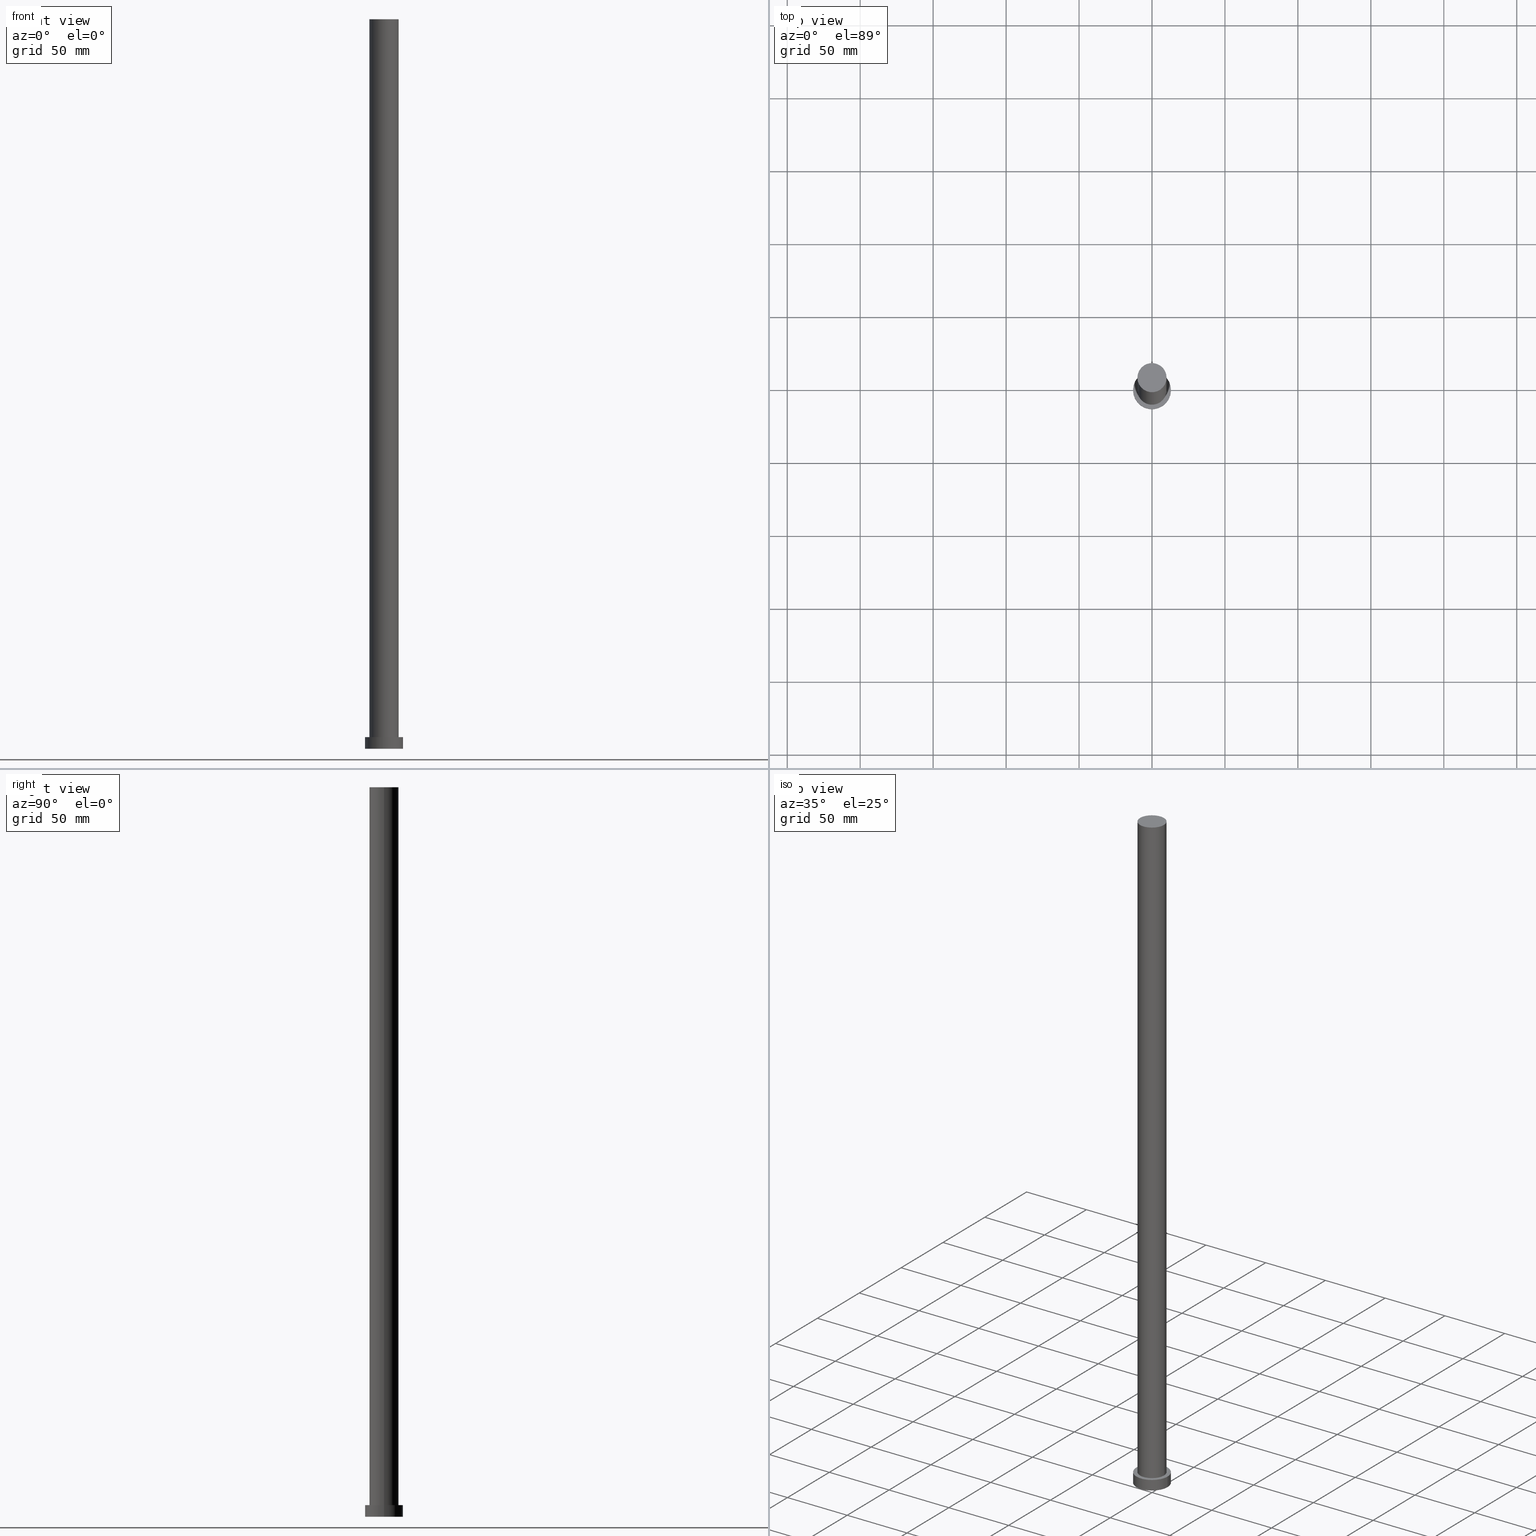
[diagram: canonical four-view strip — front | top / right | iso, engineering-drawing reading convention]
A machine part, canonical four-view strip (front | top / right | iso — engineering-drawing reading convention). The complete STEP part file that produces these views, byte-faithful:
ISO-10303-21;
HEADER;
FILE_DESCRIPTION (( 'STEP AP203' ),
    '1' );
FILE_NAME ('1e9e.STEP',
    '2023-02-12T10:32:07',
    ( '' ),
    ( '' ),
    'SwSTEP 2.0',
    'SolidWorks 2019',
    '' );
FILE_SCHEMA (( 'CONFIG_CONTROL_DESIGN' ));
ENDSEC;

DATA;
#1 = CIRCLE ( 'NONE', #34, 10.00000000000000000 ) ;
#2 = EDGE_CURVE ( 'NONE', #58, #77, #112, .T. ) ;
#3 = CARTESIAN_POINT ( 'NONE',  ( 10.00000000000000000, 1.224646799147353256E-15, 8.000000000000000000 ) ) ;
#4 = DIRECTION ( 'NONE',  ( 0.000000000000000000, 0.000000000000000000, 1.000000000000000000 ) ) ;
#5 = EDGE_LOOP ( 'NONE', ( #28, #63, #41, #222 ) ) ;
#6 = LINE ( 'NONE', #182, #124 ) ;
#7 = CIRCLE ( 'NONE', #155, 13.00000000000000178 ) ;
#8 = DIRECTION ( 'NONE',  ( 1.000000000000000000, 0.000000000000000000, -0.000000000000000000 ) ) ;
#9 = CARTESIAN_POINT ( 'NONE',  ( 0.000000000000000000, 0.000000000000000000, 500.0000000000000000 ) ) ;
#10 = EDGE_LOOP ( 'NONE', ( #36, #195, #115, #188 ) ) ;
#11 = LINE ( 'NONE', #88, #147 ) ;
#12 = APPLICATION_CONTEXT ( 'configuration controlled 3d designs of mechanical parts and assemblies' ) ;
#13 = CARTESIAN_POINT ( 'NONE',  ( -13.00000000000000178, 0.000000000000000000, 0.000000000000000000 ) ) ;
#14 = DIRECTION ( 'NONE',  ( 0.000000000000000000, 0.000000000000000000, 1.000000000000000000 ) ) ;
#15 = PERSON ( 'NEUR�EN�', 'NEUR�EN�', 'NEUR�EN�', ('NEUR�EN�'), ('NEUR�EN�'), ('NEUR�EN�') ) ;
#16 = AXIS2_PLACEMENT_3D ( 'NONE', #76, #235, #51 ) ;
#17 =( LENGTH_UNIT ( ) NAMED_UNIT ( * ) SI_UNIT ( .MILLI., .METRE. ) );
#18 = CARTESIAN_POINT ( 'NONE',  ( 0.000000000000000000, 0.000000000000000000, 0.000000000000000000 ) ) ;
#19 = DIRECTION ( 'NONE',  ( 1.000000000000000000, 0.000000000000000000, -0.000000000000000000 ) ) ;
#20 = APPROVAL_STATUS ( 'not_yet_approved' ) ;
#21 = APPROVAL ( #184, 'NEUR�EN�' ) ;
#22 = CALENDAR_DATE ( 2023, 12, 2 ) ;
#23 = AXIS2_PLACEMENT_3D ( 'NONE', #55, #61, #143 ) ;
#24 = VERTEX_POINT ( 'NONE', #48 ) ;
#25 = DATE_AND_TIME ( #65, #197 ) ;
#26 = ADVANCED_FACE ( 'NONE', ( #250 ), #27, .T. ) ;
#27 = CYLINDRICAL_SURFACE ( 'NONE', #162, 13.00000000000000178 ) ;
#28 = ORIENTED_EDGE ( 'NONE', *, *, #247, .F. ) ;
#29 = VECTOR ( 'NONE', #135, 1000.000000000000000 ) ;
#30 = CYLINDRICAL_SURFACE ( 'NONE', #16, 13.00000000000000178 ) ;
#31 = CYLINDRICAL_SURFACE ( 'NONE', #167, 10.00000000000000000 ) ;
#32 = CARTESIAN_POINT ( 'NONE',  ( -13.00000000000000178, 0.000000000000000000, 8.000000000000000000 ) ) ;
#33 = LINE ( 'NONE', #32, #102 ) ;
#34 = AXIS2_PLACEMENT_3D ( 'NONE', #225, #44, #238 ) ;
#35 = CC_DESIGN_PERSON_AND_ORGANIZATION_ASSIGNMENT ( #70, #245, ( #239 ) ) ;
#36 = ORIENTED_EDGE ( 'NONE', *, *, #186, .F. ) ;
#37 = FACE_BOUND ( 'NONE', #169, .T. ) ;
#38 = ORIENTED_EDGE ( 'NONE', *, *, #181, .T. ) ;
#39 = DESIGN_CONTEXT ( 'detailed design', #137, 'design' ) ;
#40 = CC_DESIGN_APPROVAL ( #120, ( #157 ) ) ;
#41 = ORIENTED_EDGE ( 'NONE', *, *, #114, .T. ) ;
#42 = PERSON_AND_ORGANIZATION ( #15, #74 ) ;
#43 = LOCAL_TIME ( 11, 32, 7.000000000000000000, #109 ) ;
#44 = DIRECTION ( 'NONE',  ( 0.000000000000000000, 0.000000000000000000, 1.000000000000000000 ) ) ;
#45 = PRODUCT_DEFINITION ( 'NEZN�M�', '', #239, #39 ) ;
#46 = APPROVAL_PERSON_ORGANIZATION ( #126, #163, #228 ) ;
#47 = APPROVAL_DATE_TIME ( #86, #163 ) ;
#48 = CARTESIAN_POINT ( 'NONE',  ( 13.00000000000000178, 1.592040838891559293E-15, 8.000000000000000000 ) ) ;
#49 = CARTESIAN_POINT ( 'NONE',  ( 0.000000000000000000, 0.000000000000000000, 8.000000000000000000 ) ) ;
#50 = CIRCLE ( 'NONE', #57, 10.00000000000000000 ) ;
#51 = DIRECTION ( 'NONE',  ( -1.000000000000000000, 0.000000000000000000, 0.000000000000000000 ) ) ;
#52 = EDGE_CURVE ( 'NONE', #24, #205, #11, .T. ) ;
#53 = EDGE_LOOP ( 'NONE', ( #38, #218 ) ) ;
#54 = DIRECTION ( 'NONE',  ( 0.000000000000000000, 0.000000000000000000, 1.000000000000000000 ) ) ;
#55 = CARTESIAN_POINT ( 'NONE',  ( 0.000000000000000000, 0.000000000000000000, 8.000000000000000000 ) ) ;
#56 = DIRECTION ( 'NONE',  ( 0.000000000000000000, 0.000000000000000000, 1.000000000000000000 ) ) ;
#57 = AXIS2_PLACEMENT_3D ( 'NONE', #49, #254, #116 ) ;
#58 = VERTEX_POINT ( 'NONE', #73 ) ;
#59 = MECHANICAL_CONTEXT ( 'NONE', #12, 'mechanical' ) ;
#60 = AXIS2_PLACEMENT_3D ( 'NONE', #198, #56, #223 ) ;
#61 = DIRECTION ( 'NONE',  ( 0.000000000000000000, 0.000000000000000000, 1.000000000000000000 ) ) ;
#62 = CALENDAR_DATE ( 2023, 12, 2 ) ;
#63 = ORIENTED_EDGE ( 'NONE', *, *, #186, .T. ) ;
#64 = PRODUCT_RELATED_PRODUCT_CATEGORY ( 'detail', '', ( #129 ) ) ;
#65 = CALENDAR_DATE ( 2023, 12, 2 ) ;
#66 = CLOSED_SHELL ( 'NONE', ( #172, #26, #166, #204, #215, #82, #179 ) ) ;
#67 = APPROVAL_DATE_TIME ( #232, #120 ) ;
#68 = DIRECTION ( 'NONE',  ( 0.000000000000000000, 0.000000000000000000, 1.000000000000000000 ) ) ;
#69 = DATE_TIME_ROLE ( 'creation_date' ) ;
#70 = PERSON_AND_ORGANIZATION ( #15, #74 ) ;
#71 = DIRECTION ( 'NONE',  ( -1.000000000000000000, 0.000000000000000000, 0.000000000000000000 ) ) ;
#72 = EDGE_CURVE ( 'NONE', #24, #242, #203, .T. ) ;
#73 = CARTESIAN_POINT ( 'NONE',  ( -10.00000000000000000, 0.000000000000000000, 8.000000000000000000 ) ) ;
#74 = ORGANIZATION ( 'NEUR�EN�', 'NEUR�EN�', '' ) ;
#75 = DIRECTION ( 'NONE',  ( 0.000000000000000000, 0.000000000000000000, 1.000000000000000000 ) ) ;
#76 = CARTESIAN_POINT ( 'NONE',  ( 0.000000000000000000, 0.000000000000000000, 8.000000000000000000 ) ) ;
#77 = VERTEX_POINT ( 'NONE', #3 ) ;
#78 = CARTESIAN_POINT ( 'NONE',  ( 0.000000000000000000, 0.000000000000000000, 500.0000000000000000 ) ) ;
#79 =( NAMED_UNIT ( * ) PLANE_ANGLE_UNIT ( ) SI_UNIT ( $, .RADIAN. ) );
#80 = FACE_OUTER_BOUND ( 'NONE', #141, .T. ) ;
#81 = ORIENTED_EDGE ( 'NONE', *, *, #2, .F. ) ;
#82 = ADVANCED_FACE ( 'NONE', ( #113 ), #156, .T. ) ;
#83 = CARTESIAN_POINT ( 'NONE',  ( -10.00000000000000000, 0.000000000000000000, 500.0000000000000000 ) ) ;
#84 = LOCAL_TIME ( 11, 32, 7.000000000000000000, #105 ) ;
#85 = DATE_AND_TIME ( #62, #43 ) ;
#86 = DATE_AND_TIME ( #22, #178 ) ;
#87 = AXIS2_PLACEMENT_3D ( 'NONE', #237, #98, #164 ) ;
#88 = CARTESIAN_POINT ( 'NONE',  ( 13.00000000000000178, 1.592040838891559293E-15, 8.000000000000000000 ) ) ;
#89 = ORIENTED_EDGE ( 'NONE', *, *, #148, .T. ) ;
#90 = CARTESIAN_POINT ( 'NONE',  ( 0.000000000000000000, 0.000000000000000000, 0.000000000000000000 ) ) ;
#91 = AXIS2_PLACEMENT_3D ( 'NONE', #144, #54, #8 ) ;
#92 = EDGE_CURVE ( 'NONE', #242, #128, #33, .T. ) ;
#93 = DIRECTION ( 'NONE',  ( -0.000000000000000000, -0.000000000000000000, -1.000000000000000000 ) ) ;
#94 = MANIFOLD_SOLID_BREP ( 'P�idat vysunut�m3', #66 ) ;
#95 = CARTESIAN_POINT ( 'NONE',  ( 0.000000000000000000, 0.000000000000000000, 8.000000000000000000 ) ) ;
#96 = LOCAL_TIME ( 11, 32, 7.000000000000000000, #173 ) ;
#97 = ORIENTED_EDGE ( 'NONE', *, *, #72, .F. ) ;
#98 = DIRECTION ( 'NONE',  ( 0.000000000000000000, 0.000000000000000000, 1.000000000000000000 ) ) ;
#99 = DIRECTION ( 'NONE',  ( -0.000000000000000000, -0.000000000000000000, -1.000000000000000000 ) ) ;
#100 =( NAMED_UNIT ( * ) SI_UNIT ( $, .STERADIAN. ) SOLID_ANGLE_UNIT ( ) );
#101 = PLANE ( 'NONE',  #244 ) ;
#102 = VECTOR ( 'NONE', #159, 1000.000000000000000 ) ;
#103 = EDGE_CURVE ( 'NONE', #191, #58, #217, .T. ) ;
#104 = CC_DESIGN_APPROVAL ( #21, ( #239 ) ) ;
#105 = COORDINATED_UNIVERSAL_TIME_OFFSET ( 1, 0, .AHEAD. ) ;
#106 = APPROVAL_DATE_TIME ( #85, #21 ) ;
#107 = APPROVAL_ROLE ( '' ) ;
#108 = DIRECTION ( 'NONE',  ( -0.000000000000000000, -0.000000000000000000, -1.000000000000000000 ) ) ;
#109 = COORDINATED_UNIVERSAL_TIME_OFFSET ( 1, 0, .AHEAD. ) ;
#110 = CIRCLE ( 'NONE', #60, 10.00000000000000000 ) ;
#111 = CC_DESIGN_DATE_AND_TIME_ASSIGNMENT ( #248, #69, ( #45 ) ) ;
#112 = CIRCLE ( 'NONE', #251, 10.00000000000000000 ) ;
#113 = FACE_OUTER_BOUND ( 'NONE', #10, .T. ) ;
#114 = EDGE_CURVE ( 'NONE', #77, #58, #50, .T. ) ;
#115 = ORIENTED_EDGE ( 'NONE', *, *, #103, .T. ) ;
#116 = DIRECTION ( 'NONE',  ( 1.000000000000000000, 0.000000000000000000, 0.000000000000000000 ) ) ;
#117 = ORIENTED_EDGE ( 'NONE', *, *, #72, .T. ) ;
#118 = CARTESIAN_POINT ( 'NONE',  ( 0.000000000000000000, 0.000000000000000000, 0.000000000000000000 ) ) ;
#119 = DIRECTION ( 'NONE',  ( -1.000000000000000000, 0.000000000000000000, 0.000000000000000000 ) ) ;
#120 = APPROVAL ( #152, 'NEUR�EN�' ) ;
#121 = AXIS2_PLACEMENT_3D ( 'NONE', #78, #93, #255 ) ;
#122 = DIRECTION ( 'NONE',  ( -0.000000000000000000, -0.000000000000000000, -1.000000000000000000 ) ) ;
#123 = PRODUCT_DEFINITION_SHAPE ( 'NONE', 'NONE',  #45 ) ;
#124 = VECTOR ( 'NONE', #99, 1000.000000000000000 ) ;
#125 = ORIENTED_EDGE ( 'NONE', *, *, #148, .F. ) ;
#126 = PERSON_AND_ORGANIZATION ( #15, #74 ) ;
#127 = PERSON_AND_ORGANIZATION_ROLE ( 'creator' ) ;
#128 = VERTEX_POINT ( 'NONE', #13 ) ;
#129 = PRODUCT ( '1e9e', '1e9e', '', ( #59 ) ) ;
#130 = PERSON_AND_ORGANIZATION ( #15, #74 ) ;
#131 = ORIENTED_EDGE ( 'NONE', *, *, #140, .T. ) ;
#132 = PERSON_AND_ORGANIZATION ( #15, #74 ) ;
#133 = ORIENTED_EDGE ( 'NONE', *, *, #92, .T. ) ;
#134 = CC_DESIGN_PERSON_AND_ORGANIZATION_ASSIGNMENT ( #130, #151, ( #239 ) ) ;
#135 = DIRECTION ( 'NONE',  ( -0.000000000000000000, -0.000000000000000000, -1.000000000000000000 ) ) ;
#136 = FACE_OUTER_BOUND ( 'NONE', #5, .T. ) ;
#137 = APPLICATION_CONTEXT ( 'configuration controlled 3d designs of mechanical parts and assemblies' ) ;
#138 = EDGE_LOOP ( 'NONE', ( #97, #171, #131, #160 ) ) ;
#139 = DIRECTION ( 'NONE',  ( 0.000000000000000000, 0.000000000000000000, 1.000000000000000000 ) ) ;
#140 = EDGE_CURVE ( 'NONE', #205, #128, #234, .T. ) ;
#141 = EDGE_LOOP ( 'NONE', ( #220, #213 ) ) ;
#142 = DIRECTION ( 'NONE',  ( 1.000000000000000000, 0.000000000000000000, 0.000000000000000000 ) ) ;
#143 = DIRECTION ( 'NONE',  ( 1.000000000000000000, 0.000000000000000000, -0.000000000000000000 ) ) ;
#144 = CARTESIAN_POINT ( 'NONE',  ( 0.000000000000000000, 0.000000000000000000, 500.0000000000000000 ) ) ;
#145 = ADVANCED_BREP_SHAPE_REPRESENTATION ( '1e9e', ( #94, #87 ), #201 ) ;
#146 = CC_DESIGN_PERSON_AND_ORGANIZATION_ASSIGNMENT ( #190, #208, ( #157 ) ) ;
#147 = VECTOR ( 'NONE', #214, 1000.000000000000000 ) ;
#148 = EDGE_CURVE ( 'NONE', #242, #24, #7, .T. ) ;
#149 = COORDINATED_UNIVERSAL_TIME_OFFSET ( 1, 0, .AHEAD. ) ;
#150 = DIRECTION ( 'NONE',  ( 1.000000000000000000, 0.000000000000000000, 0.000000000000000000 ) ) ;
#151 = PERSON_AND_ORGANIZATION_ROLE ( 'creator' ) ;
#152 = APPROVAL_STATUS ( 'not_yet_approved' ) ;
#153 = DIRECTION ( 'NONE',  ( 1.000000000000000000, 0.000000000000000000, 0.000000000000000000 ) ) ;
#154 = FACE_OUTER_BOUND ( 'NONE', #229, .T. ) ;
#155 = AXIS2_PLACEMENT_3D ( 'NONE', #233, #192, #216 ) ;
#156 = CYLINDRICAL_SURFACE ( 'NONE', #121, 10.00000000000000000 ) ;
#157 = SECURITY_CLASSIFICATION ( '', '', #206 ) ;
#158 = APPROVAL_PERSON_ORGANIZATION ( #230, #21, #226 ) ;
#159 = DIRECTION ( 'NONE',  ( -0.000000000000000000, -0.000000000000000000, -1.000000000000000000 ) ) ;
#160 = ORIENTED_EDGE ( 'NONE', *, *, #92, .F. ) ;
#161 = APPLICATION_PROTOCOL_DEFINITION ( 'international standard', 'config_control_design', 1994, #137 ) ;
#162 = AXIS2_PLACEMENT_3D ( 'NONE', #209, #108, #71 ) ;
#163 = APPROVAL ( #20, 'NEUR�EN�' ) ;
#164 = DIRECTION ( 'NONE',  ( 1.000000000000000000, 0.000000000000000000, 0.000000000000000000 ) ) ;
#165 = FACE_OUTER_BOUND ( 'NONE', #53, .T. ) ;
#166 = ADVANCED_FACE ( 'NONE', ( #154 ), #30, .T. ) ;
#167 = AXIS2_PLACEMENT_3D ( 'NONE', #9, #122, #119 ) ;
#168 = SHAPE_DEFINITION_REPRESENTATION ( #123, #145 ) ;
#169 = EDGE_LOOP ( 'NONE', ( #81, #183 ) ) ;
#170 = PERSON_AND_ORGANIZATION ( #15, #74 ) ;
#171 = ORIENTED_EDGE ( 'NONE', *, *, #52, .T. ) ;
#172 = ADVANCED_FACE ( 'NONE', ( #136 ), #31, .T. ) ;
#173 = COORDINATED_UNIVERSAL_TIME_OFFSET ( 1, 0, .AHEAD. ) ;
#174 = COORDINATED_UNIVERSAL_TIME_OFFSET ( 1, 0, .AHEAD. ) ;
#175 = ORIENTED_EDGE ( 'NONE', *, *, #212, .T. ) ;
#176 = UNCERTAINTY_MEASURE_WITH_UNIT (LENGTH_MEASURE( 1.000000000000000082E-05 ), #17, 'distance_accuracy_value', 'NONE');
#177 = DIRECTION ( 'NONE',  ( 1.000000000000000000, 0.000000000000000000, 0.000000000000000000 ) ) ;
#178 = LOCAL_TIME ( 11, 32, 7.000000000000000000, #149 ) ;
#179 = ADVANCED_FACE ( 'NONE', ( #165 ), #200, .T. ) ;
#180 = APPLICATION_PROTOCOL_DEFINITION ( 'international standard', 'config_control_design', 1994, #12 ) ;
#181 = EDGE_CURVE ( 'NONE', #191, #211, #1, .T. ) ;
#182 = CARTESIAN_POINT ( 'NONE',  ( 10.00000000000000000, 1.224646799147353256E-15, 500.0000000000000000 ) ) ;
#183 = ORIENTED_EDGE ( 'NONE', *, *, #114, .F. ) ;
#184 = APPROVAL_STATUS ( 'not_yet_approved' ) ;
#185 = AXIS2_PLACEMENT_3D ( 'NONE', #18, #139, #142 ) ;
#186 = EDGE_CURVE ( 'NONE', #211, #77, #6, .T. ) ;
#187 = CALENDAR_DATE ( 2023, 12, 2 ) ;
#188 = ORIENTED_EDGE ( 'NONE', *, *, #2, .T. ) ;
#189 = AXIS2_PLACEMENT_3D ( 'NONE', #95, #14, #177 ) ;
#190 = PERSON_AND_ORGANIZATION ( #15, #74 ) ;
#191 = VERTEX_POINT ( 'NONE', #83 ) ;
#192 = DIRECTION ( 'NONE',  ( 0.000000000000000000, 0.000000000000000000, 1.000000000000000000 ) ) ;
#193 = CC_DESIGN_PERSON_AND_ORGANIZATION_ASSIGNMENT ( #132, #127, ( #45 ) ) ;
#194 = CARTESIAN_POINT ( 'NONE',  ( -10.00000000000000000, 0.000000000000000000, 500.0000000000000000 ) ) ;
#195 = ORIENTED_EDGE ( 'NONE', *, *, #181, .F. ) ;
#196 = CARTESIAN_POINT ( 'NONE',  ( -13.00000000000000178, 0.000000000000000000, 8.000000000000000000 ) ) ;
#197 = LOCAL_TIME ( 11, 32, 7.000000000000000000, #174 ) ;
#198 = CARTESIAN_POINT ( 'NONE',  ( 0.000000000000000000, 0.000000000000000000, 500.0000000000000000 ) ) ;
#199 = CARTESIAN_POINT ( 'NONE',  ( 13.00000000000000178, 1.592040838891559293E-15, 0.000000000000000000 ) ) ;
#200 = PLANE ( 'NONE',  #91 ) ;
#201 =( GEOMETRIC_REPRESENTATION_CONTEXT ( 3 ) GLOBAL_UNCERTAINTY_ASSIGNED_CONTEXT ( ( #176 ) ) GLOBAL_UNIT_ASSIGNED_CONTEXT ( ( #17, #79, #100 ) ) REPRESENTATION_CONTEXT ( 'NONE', 'WORKASPACE' ) );
#202 = PERSON_AND_ORGANIZATION_ROLE ( 'design_owner' ) ;
#203 = CIRCLE ( 'NONE', #189, 13.00000000000000178 ) ;
#204 = ADVANCED_FACE ( 'NONE', ( #37, #221 ), #243, .T. ) ;
#205 = VERTEX_POINT ( 'NONE', #199 ) ;
#206 = SECURITY_CLASSIFICATION_LEVEL ( 'unclassified' ) ;
#207 = EDGE_LOOP ( 'NONE', ( #89, #117 ) ) ;
#208 = PERSON_AND_ORGANIZATION_ROLE ( 'classification_officer' ) ;
#209 = CARTESIAN_POINT ( 'NONE',  ( 0.000000000000000000, 0.000000000000000000, 8.000000000000000000 ) ) ;
#210 = AXIS2_PLACEMENT_3D ( 'NONE', #90, #75, #153 ) ;
#211 = VERTEX_POINT ( 'NONE', #241 ) ;
#212 = EDGE_CURVE ( 'NONE', #128, #205, #224, .T. ) ;
#213 = ORIENTED_EDGE ( 'NONE', *, *, #140, .F. ) ;
#214 = DIRECTION ( 'NONE',  ( -0.000000000000000000, -0.000000000000000000, -1.000000000000000000 ) ) ;
#215 = ADVANCED_FACE ( 'NONE', ( #80 ), #101, .F. ) ;
#216 = DIRECTION ( 'NONE',  ( 1.000000000000000000, 0.000000000000000000, 0.000000000000000000 ) ) ;
#217 = LINE ( 'NONE', #194, #29 ) ;
#218 = ORIENTED_EDGE ( 'NONE', *, *, #247, .T. ) ;
#219 = CC_DESIGN_SECURITY_CLASSIFICATION ( #157, ( #239 ) ) ;
#220 = ORIENTED_EDGE ( 'NONE', *, *, #212, .F. ) ;
#221 = FACE_OUTER_BOUND ( 'NONE', #207, .T. ) ;
#222 = ORIENTED_EDGE ( 'NONE', *, *, #103, .F. ) ;
#223 = DIRECTION ( 'NONE',  ( 1.000000000000000000, 0.000000000000000000, 0.000000000000000000 ) ) ;
#224 = CIRCLE ( 'NONE', #185, 13.00000000000000178 ) ;
#225 = CARTESIAN_POINT ( 'NONE',  ( 0.000000000000000000, 0.000000000000000000, 500.0000000000000000 ) ) ;
#226 = APPROVAL_ROLE ( '' ) ;
#227 = CALENDAR_DATE ( 2023, 12, 2 ) ;
#228 = APPROVAL_ROLE ( '' ) ;
#229 = EDGE_LOOP ( 'NONE', ( #231, #125, #133, #175 ) ) ;
#230 = PERSON_AND_ORGANIZATION ( #15, #74 ) ;
#231 = ORIENTED_EDGE ( 'NONE', *, *, #52, .F. ) ;
#232 = DATE_AND_TIME ( #227, #84 ) ;
#233 = CARTESIAN_POINT ( 'NONE',  ( 0.000000000000000000, 0.000000000000000000, 8.000000000000000000 ) ) ;
#234 = CIRCLE ( 'NONE', #210, 13.00000000000000178 ) ;
#235 = DIRECTION ( 'NONE',  ( -0.000000000000000000, -0.000000000000000000, -1.000000000000000000 ) ) ;
#236 = CC_DESIGN_APPROVAL ( #163, ( #45 ) ) ;
#237 = CARTESIAN_POINT ( 'NONE',  ( 0.000000000000000000, 0.000000000000000000, 0.000000000000000000 ) ) ;
#238 = DIRECTION ( 'NONE',  ( 1.000000000000000000, 0.000000000000000000, 0.000000000000000000 ) ) ;
#239 = PRODUCT_DEFINITION_FORMATION_WITH_SPECIFIED_SOURCE ( 'LIBOVOLN�', '', #129, .NOT_KNOWN. ) ;
#240 = CC_DESIGN_PERSON_AND_ORGANIZATION_ASSIGNMENT ( #42, #202, ( #129 ) ) ;
#241 = CARTESIAN_POINT ( 'NONE',  ( 10.00000000000000000, 1.224646799147353256E-15, 500.0000000000000000 ) ) ;
#242 = VERTEX_POINT ( 'NONE', #196 ) ;
#243 = PLANE ( 'NONE',  #23 ) ;
#244 = AXIS2_PLACEMENT_3D ( 'NONE', #118, #4, #19 ) ;
#245 = PERSON_AND_ORGANIZATION_ROLE ( 'design_supplier' ) ;
#246 = CARTESIAN_POINT ( 'NONE',  ( 0.000000000000000000, 0.000000000000000000, 8.000000000000000000 ) ) ;
#247 = EDGE_CURVE ( 'NONE', #211, #191, #110, .T. ) ;
#248 = DATE_AND_TIME ( #187, #96 ) ;
#249 = DATE_TIME_ROLE ( 'classification_date' ) ;
#250 = FACE_OUTER_BOUND ( 'NONE', #138, .T. ) ;
#251 = AXIS2_PLACEMENT_3D ( 'NONE', #246, #68, #150 ) ;
#252 = CC_DESIGN_DATE_AND_TIME_ASSIGNMENT ( #25, #249, ( #157 ) ) ;
#253 = APPROVAL_PERSON_ORGANIZATION ( #170, #120, #107 ) ;
#254 = DIRECTION ( 'NONE',  ( 0.000000000000000000, 0.000000000000000000, 1.000000000000000000 ) ) ;
#255 = DIRECTION ( 'NONE',  ( -1.000000000000000000, 0.000000000000000000, 0.000000000000000000 ) ) ;
ENDSEC;
END-ISO-10303-21;
